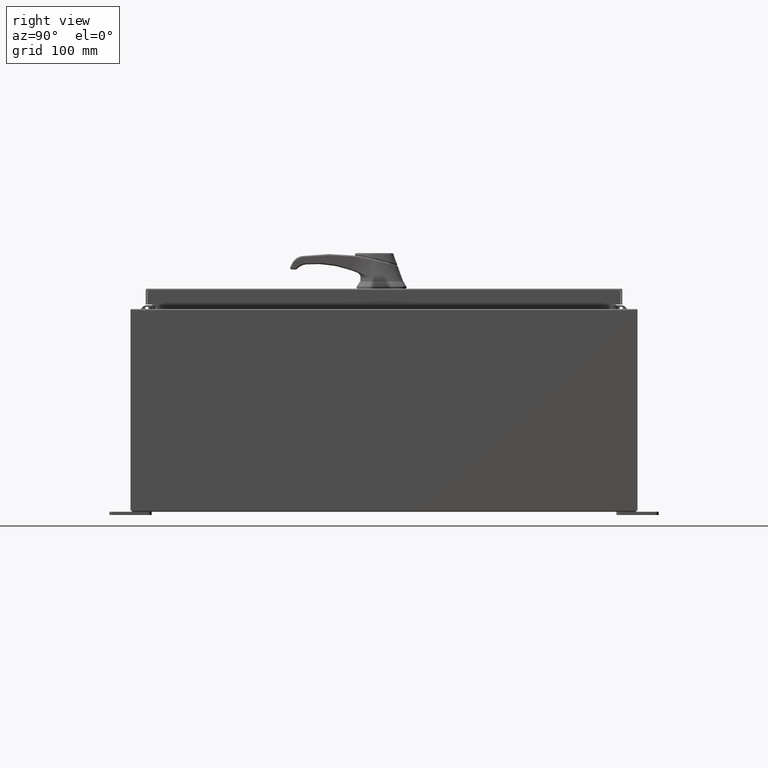
[diagram: clean part render]
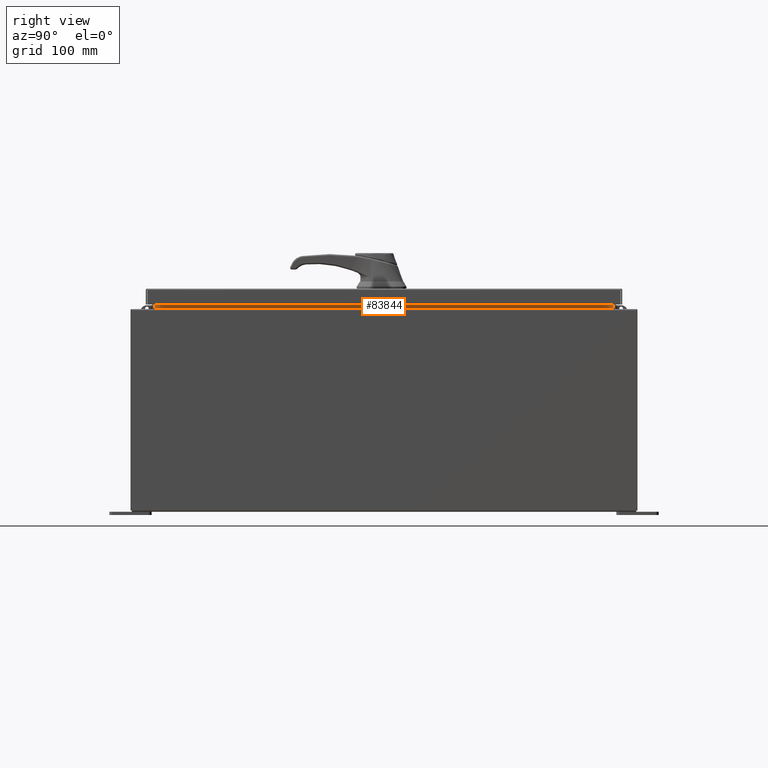
[diagram: same view with one face highlighted and labeled with its STEP entity id]
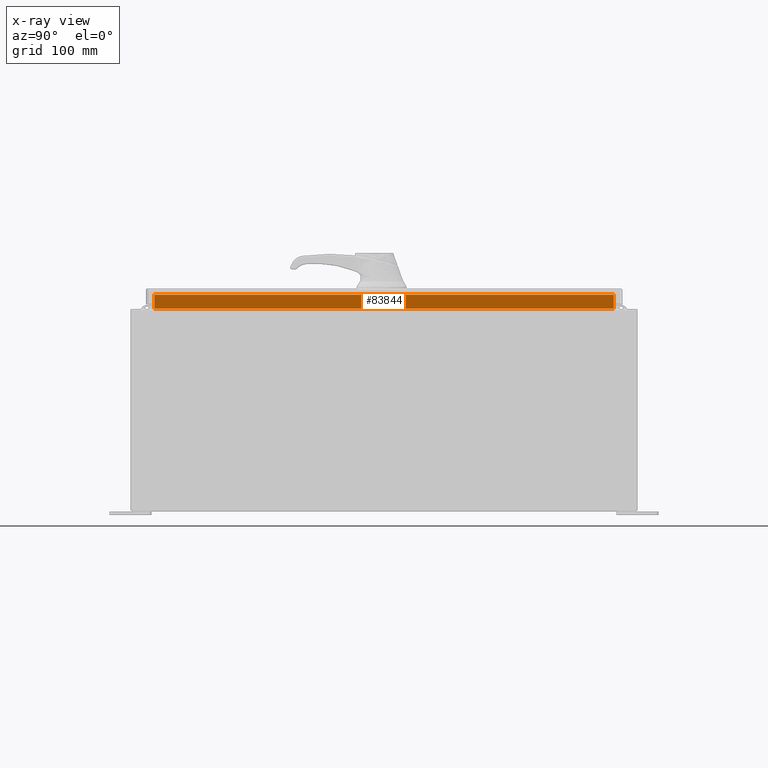
[diagram: x-ray of the same camera — body ghosted, the highlighted face saturated]
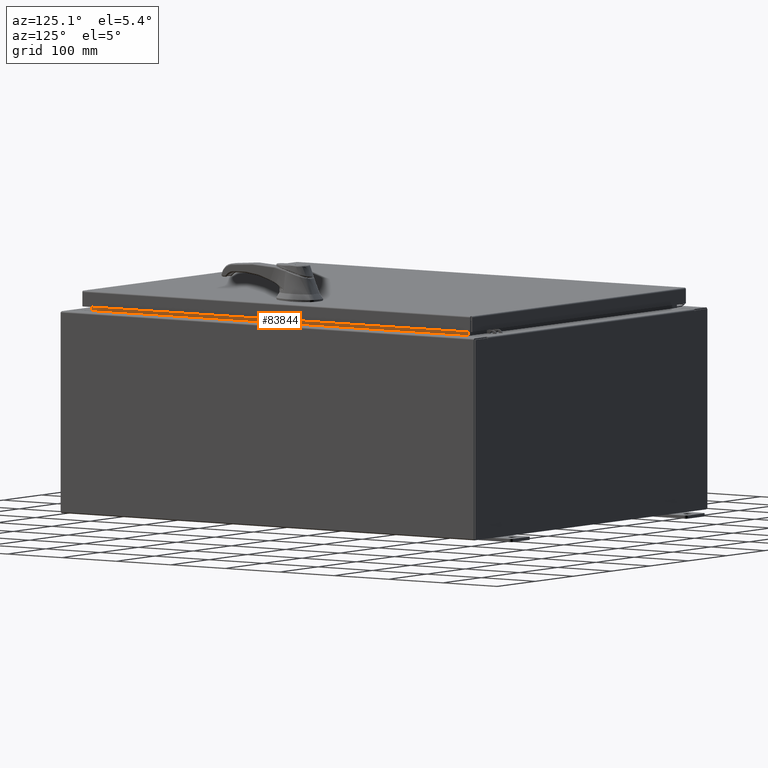
[diagram: same view with one face highlighted and labeled with its STEP entity id]
A machine part, right view. The second image highlights one B-rep face of the part: STEP entity #83844.
The next image is the same camera in x-ray: the body ghosted, the highlighted face saturated — about 0% of this face is hidden behind the body in this view.
A second angle (auxiliary view) of the same face is appended — the face is thin or edge-on in the first view.
In plain terms, the highlighted planar face has unit normal (1, 0, -0).
Its self-contained STEP definition (entity closure, byte-faithful):
#3862 = EDGE_LOOP ( 'NONE', ( #109464, #109295, #14715, #111357 ) ) ;
#8693 = LINE ( 'NONE', #110546, #78942 ) ;
#14715 = ORIENTED_EDGE ( 'NONE', *, *, #111161, .F. ) ;
#18166 = CARTESIAN_POINT ( 'NONE',  ( 10.69970000000004300, -13.59374999999999800, 12.85060000000001100 ) ) ;
#18603 = LINE ( 'NONE', #51457, #24387 ) ;
#19259 = DIRECTION ( 'NONE',  ( -4.723826639860386500E-015, 0.0000000000000000000, -1.000000000000000000 ) ) ;
#19538 = CARTESIAN_POINT ( 'NONE',  ( 10.69970000000003900, -13.59375000000000000, 11.93830000000001200 ) ) ;
#20864 = CARTESIAN_POINT ( 'NONE',  ( 10.69970000000003900, 13.59374999999999800, 11.92530000000000900 ) ) ;
#22411 = VECTOR ( 'NONE', #91478, 39.37007874015748100 ) ;
#24387 = VECTOR ( 'NONE', #106207, 39.37007874015748100 ) ;
#28976 = CARTESIAN_POINT ( 'NONE',  ( 10.69970000000004300, -13.59374999999999800, 12.76290000000001100 ) ) ;
#31540 = VERTEX_POINT ( 'NONE', #28976 ) ;
#34984 = CARTESIAN_POINT ( 'NONE',  ( 10.69970000000004300, 13.59374999999999300, 12.76290000000001100 ) ) ;
#37769 = EDGE_CURVE ( 'NONE', #31540, #37933, #18603, .T. ) ;
#37933 = VERTEX_POINT ( 'NONE', #34984 ) ;
#40413 = VECTOR ( 'NONE', #112586, 39.37007874015748100 ) ;
#44422 = AXIS2_PLACEMENT_3D ( 'NONE', #82990, #74187, #19259 ) ;
#47584 = CARTESIAN_POINT ( 'NONE',  ( 10.69970000000003900, 13.59375000000000000, 11.93830000000001200 ) ) ;
#50975 = EDGE_CURVE ( 'NONE', #37933, #87317, #64749, .T. ) ;
#51457 = CARTESIAN_POINT ( 'NONE',  ( 10.69970000000004300, -13.59374999999999300, 12.76290000000001100 ) ) ;
#51554 = EDGE_CURVE ( 'NONE', #87317, #64447, #8693, .T. ) ;
#55715 = DIRECTION ( 'NONE',  ( 8.038541222736223700E-017, -1.000000000000000000, 1.607708244547244700E-016 ) ) ;
#61603 = FACE_OUTER_BOUND ( 'NONE', #3862, .T. ) ;
#64447 = VERTEX_POINT ( 'NONE', #19538 ) ;
#64749 = LINE ( 'NONE', #20864, #40413 ) ;
#74187 = DIRECTION ( 'NONE',  ( 1.000000000000000000, 0.0000000000000000000, -4.723826639860386500E-015 ) ) ;
#78942 = VECTOR ( 'NONE', #55715, 39.37007874015748100 ) ;
#82990 = CARTESIAN_POINT ( 'NONE',  ( 10.69969999999998200, 0.0000000000000000000, -5.054352789851408700E-014 ) ) ;
#83844 = ADVANCED_FACE ( 'NONE', ( #61603 ), #110616, .T. ) ;
#87317 = VERTEX_POINT ( 'NONE', #47584 ) ;
#91478 = DIRECTION ( 'NONE',  ( 4.723826639860397600E-015, -0.0000000000000000000, 1.000000000000000000 ) ) ;
#106207 = DIRECTION ( 'NONE',  ( 0.0000000000000000000, 1.000000000000000000, 0.0000000000000000000 ) ) ;
#109295 = ORIENTED_EDGE ( 'NONE', *, *, #37769, .F. ) ;
#109464 = ORIENTED_EDGE ( 'NONE', *, *, #50975, .F. ) ;
#110546 = CARTESIAN_POINT ( 'NONE',  ( 10.69970000000004100, 13.59374999999999800, 11.93830000000000900 ) ) ;
#110616 = PLANE ( 'NONE',  #44422 ) ;
#111161 = EDGE_CURVE ( 'NONE', #64447, #31540, #114104, .T. ) ;
#111357 = ORIENTED_EDGE ( 'NONE', *, *, #51554, .F. ) ;
#112586 = DIRECTION ( 'NONE',  ( -4.723826639860386500E-015, -0.0000000000000000000, -1.000000000000000000 ) ) ;
#114104 = LINE ( 'NONE', #18166, #22411 ) ;